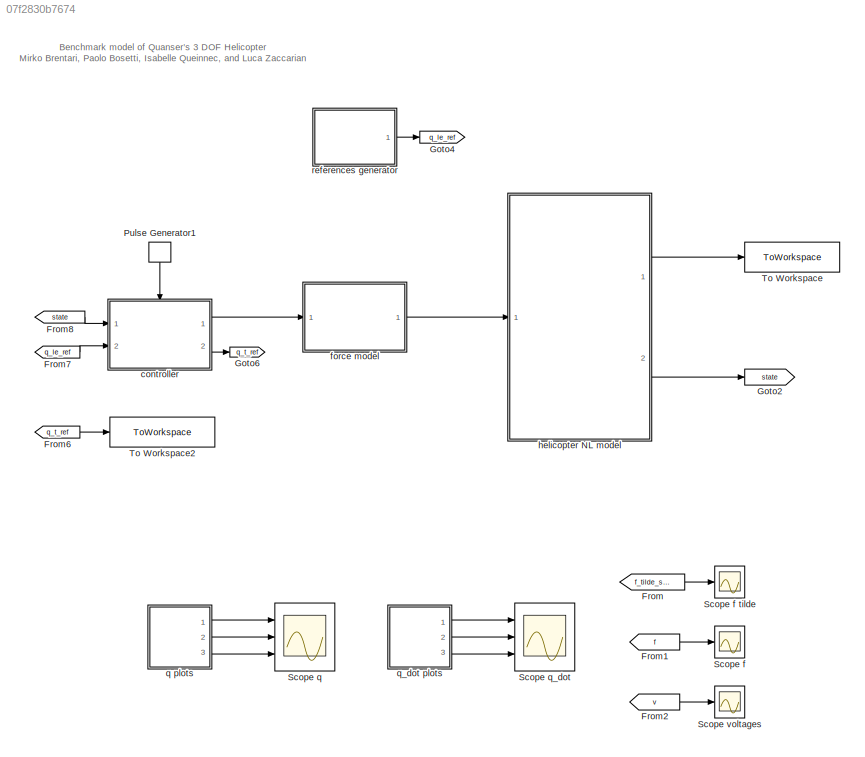
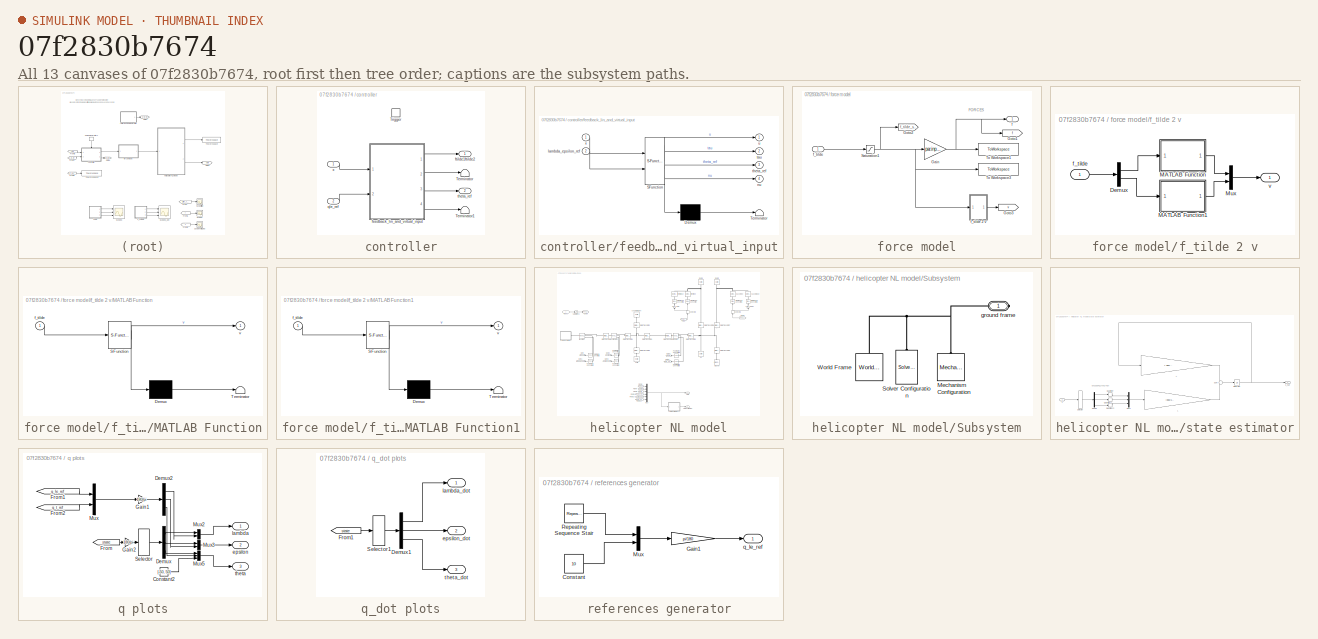
[diagram: thumbnail index - all 13 canvases of the model, root first then tree order]
MODEL slx_07f2830b7674
KIND model
CONFIG AbsTol = auto
CONFIG EnableMultiTasking = off
CONFIG FixedStep = par.ts
CONFIG MaxStep = 1e-3
CONFIG MinStep = auto
CONFIG RelTol = 1e-3
CONFIG SampleTimeConstraint = Unconstrained
CONFIG Solver = FixedStepAuto
CONFIG SolverName = FixedStepAuto
CONFIG StartTime = 0.0
CONFIG StopTime = par.tend
BLOCK [From] From
  GotoTag = f_tilde_sat
  TagVisibility = global
BLOCK [From] From1
  GotoTag = f
  TagVisibility = global
BLOCK [From] From2
  GotoTag = v
  TagVisibility = global
BLOCK [From] From6
  GotoTag = q_t_ref
  TagVisibility = global
BLOCK [From] From7
  GotoTag = q_le_ref
  TagVisibility = global
BLOCK [From] From8
  GotoTag = state
  TagVisibility = global
BLOCK [Goto] Goto2
  GotoTag = state
  TagVisibility = global
BLOCK [Goto] Goto4
  GotoTag = q_le_ref
  TagVisibility = global
BLOCK [Goto] Goto6
  GotoTag = q_t_ref
  TagVisibility = global
BLOCK [DiscretePulseGenerator] Pulse Generator1
  Period = 0.01
  Ports = [0, 1]
  PulseType = Time based
  PulseWidth = 50
BLOCK [Scope] Scope f
  NumInputPorts = 1
  Ports = [1]
  ScopeSpecificationString = Simulink.scopes.TimeScopeBlockCfg('CurrentConfiguration', extmgr.ConfigurationSet(extmgr.Configuration('Core','General UI',true),extmgr.Configuration('Core','Source UI',true),extmgr.Configuration('Sources','WiredSimulink',true,'DataLoggingVariableName','ScopeData1'),extmgr.Configuration('Visuals','Time Domain',true,'SerializedDisplays',{struct('MinYLimReal','-0.14251','MaxYLimReal','1.28256','YLab...<+1474ch>
BLOCK [Scope] Scope f tilde
  NumInputPorts = 1
  Ports = [1]
  ScopeSpecificationString = Simulink.scopes.TimeScopeBlockCfg('CurrentConfiguration', extmgr.ConfigurationSet(extmgr.Configuration('Core','General UI',true),extmgr.Configuration('Core','Source UI',true),extmgr.Configuration('Sources','WiredSimulink',true,'DataLoggingVariableName','ScopeData2'),extmgr.Configuration('Visuals','Time Domain',true,'SerializedDisplays',{struct('MinYLimReal','-0.38375','MaxYLimReal','1.15375','YLab...<+1459ch>
BLOCK [Scope] Scope q
  NumInputPorts = 3
  Ports = [3]
  ScopeSpecificationString = Simulink.scopes.TimeScopeBlockCfg('CurrentConfiguration', extmgr.ConfigurationSet(extmgr.Configuration('Core','General UI',true),extmgr.Configuration('Core','Source UI',true),extmgr.Configuration('Sources','WiredSimulink',true,'DataLoggingVariableName','ScopeData1'),extmgr.Configuration('Visuals','Time Domain',true,'SerializedDisplays',{struct('MinYLimReal','-112.97207','MaxYLimReal','116.74866','...<+2872ch>
BLOCK [Scope] Scope q_dot
  NumInputPorts = 3
  Ports = [3]
  ScopeSpecificationString = Simulink.scopes.TimeScopeBlockCfg('CurrentConfiguration', extmgr.ConfigurationSet(extmgr.Configuration('Core','General UI',true),extmgr.Configuration('Core','Source UI',true),extmgr.Configuration('Sources','WiredSimulink',true,'DataLoggingVariableName','ScopeData2'),extmgr.Configuration('Visuals','Time Domain',true,'SerializedDisplays',{struct('MinYLimReal','-0.10874','MaxYLimReal','0.8453','YLabe...<+2734ch>
BLOCK [Scope] Scope voltages
  NumInputPorts = 1
  Ports = [1]
  ScopeSpecificationString = Simulink.scopes.TimeScopeBlockCfg('CurrentConfiguration', extmgr.ConfigurationSet(extmgr.Configuration('Core','General UI',true),extmgr.Configuration('Core','Source UI',true),extmgr.Configuration('Sources','WiredSimulink',true,'DataLoggingVariableName','ScopeData3'),extmgr.Configuration('Visuals','Time Domain',true,'SerializedDisplays',{struct('MinYLimReal','-0.56285','MaxYLimReal','5.06568','YLab...<+1460ch>
BLOCK [ToWorkspace] To Workspace
  FixptAsFi = on
  MaxDataPoints = inf
  Ports = [1]
  SampleTime = -1
  Save2DSignal = 3-D array (concatenate along third dimension)
  SaveFormat = Timeseries
  VariableName = nlsimulator_output
BLOCK [ToWorkspace] To Workspace2
  FixptAsFi = on
  MaxDataPoints = inf
  Ports = [1]
  SampleTime = -1
  Save2DSignal = 3-D array (concatenate along third dimension)
  SaveFormat = Timeseries
  VariableName = nlsimulator_theta_ref
BLOCK [SubSystem] controller
  Ports = [2, 2, 0, 1]
  RequestExecContextInheritance = off
  Variant = off
BLOCK [Terminator] controller/Terminator
BLOCK [Terminator] controller/Terminator1
BLOCK [TriggerPort] controller/Trigger
  PortDimensions = 1
  Ports = []
  StatesWhenEnabling = held
  VariantControl = Variant
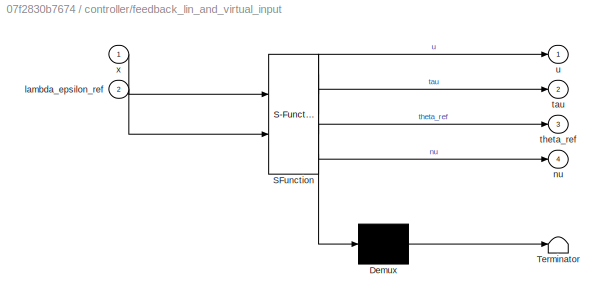
BLOCK [SubSystem] controller/feedback_lin_and_virtual_input
  ErrorFcn = Stateflow.Translate.translate
  PermitHierarchicalResolution = ExplicitOnly
  Ports = [2, 4]
  RequestExecContextInheritance = off
  SFBlockType = MATLAB Function
  TreatAsAtomicUnit = on
  Variant = off
BLOCK [Demux] controller/feedback_lin_and_virtual_input/ Demux 
  Outputs = 1
  Ports = [1, 1]
BLOCK [S-Function] controller/feedback_lin_and_virtual_input/ SFunction 
  EnableBusSupport = on
  FunctionName = sf_sfun
  Parameters = par
  PortCounts = [2 5]
  Ports = [2, 5]
  SFcnIsStateOwnerBlock = off
  SFunctionDeploymentMode = off
  Tag = Stateflow S-Function helico_model 5
BLOCK [Terminator] controller/feedback_lin_and_virtual_input/ Terminator 
BLOCK [Inport] controller/feedback_lin_and_virtual_input/lambda_epsilon_ref
  IconDisplay = Port number
  Port = 2
BLOCK [Outport] controller/feedback_lin_and_virtual_input/nu
  IconDisplay = Port number
  Port = 4
BLOCK [Outport] controller/feedback_lin_and_virtual_input/tau
  IconDisplay = Port number
  Port = 2
BLOCK [Outport] controller/feedback_lin_and_virtual_input/theta_ref
  IconDisplay = Port number
  Port = 3
BLOCK [Outport] controller/feedback_lin_and_virtual_input/u
  IconDisplay = Port number
BLOCK [Inport] controller/feedback_lin_and_virtual_input/x
  IconDisplay = Port number
BLOCK [Outport] controller/ftilde1ftilde2
  IconDisplay = Port number
BLOCK [Inport] controller/qle_ref
  IconDisplay = Port number
  Port = 2
BLOCK [Outport] controller/theta_ref
  IconDisplay = Port number
  Port = 2
BLOCK [Inport] controller/x
  IconDisplay = Port number
BLOCK [SubSystem] force model
  Ports = [1, 1]
  RequestExecContextInheritance = off
  Variant = off
BLOCK [Gain] force model/Gain
  Gain = par.input
  OutDataTypeStr = Inherit: Inherit via internal rule
  ParamDataTypeStr = Inherit: Inherit via internal rule
  SaturateOnIntegerOverflow = off
BLOCK [Goto] force model/Goto1
  GotoTag = f
  TagVisibility = global
BLOCK [Goto] force model/Goto2
  GotoTag = f_tilde_sat
  TagVisibility = global
BLOCK [Goto] force model/Goto3
  GotoTag = v
  TagVisibility = global
BLOCK [Saturate] force model/Saturation1
  InputPortMap = u0
  LowerLimit = -0.23
  Ports = [1, 1]
  UpperLimit = 1
BLOCK [ToWorkspace] force model/To Workspace1
  MaxDataPoints = inf
  Ports = [1]
  SampleTime = par.ts
  Save2DSignal = 3-D array (concatenate along third dimension)
  SaveFormat = Timeseries
  VariableName = nlsimulator_input
BLOCK [ToWorkspace] force model/To Workspace3
  MaxDataPoints = inf
  Ports = [1]
  SampleTime = par.ts
  Save2DSignal = 3-D array (concatenate along third dimension)
  SaveFormat = Timeseries
  VariableName = nlsimulator_ftilde
BLOCK [Outport] force model/f
  IconDisplay = Port number
BLOCK [Inport] force model/f_tilde
  IconDisplay = Port number
BLOCK [SubSystem] force model/f_tilde 2 v
  Ports = [1, 1]
  RequestExecContextInheritance = off
  Variant = off
BLOCK [Demux] force model/f_tilde 2 v/Demux
  DisplayOption = bar
  Outputs = 2
  Ports = [1, 2]
BLOCK [SubSystem] force model/f_tilde 2 v/MATLAB Function
  ErrorFcn = Stateflow.Translate.translate
  PermitHierarchicalResolution = ExplicitOnly
  Ports = [1, 1]
  RequestExecContextInheritance = off
  SFBlockType = MATLAB Function
  TreatAsAtomicUnit = on
  Variant = off
BLOCK [Demux] force model/f_tilde 2 v/MATLAB Function/ Demux 
  Outputs = 1
  Ports = [1, 1]
BLOCK [S-Function] force model/f_tilde 2 v/MATLAB Function/ SFunction 
  EnableBusSupport = on
  FunctionName = sf_sfun
  Parameters = par
  PortCounts = [1 2]
  Ports = [1, 2]
  SFcnIsStateOwnerBlock = off
  SFunctionDeploymentMode = off
  Tag = Stateflow S-Function helico_model 1
BLOCK [Terminator] force model/f_tilde 2 v/MATLAB Function/ Terminator 
BLOCK [Inport] force model/f_tilde 2 v/MATLAB Function/f_tilde
  IconDisplay = Port number
BLOCK [Outport] force model/f_tilde 2 v/MATLAB Function/v
  IconDisplay = Port number
BLOCK [SubSystem] force model/f_tilde 2 v/MATLAB Function1
  ErrorFcn = Stateflow.Translate.translate
  PermitHierarchicalResolution = ExplicitOnly
  Ports = [1, 1]
  RequestExecContextInheritance = off
  SFBlockType = MATLAB Function
  TreatAsAtomicUnit = on
  Variant = off
BLOCK [Demux] force model/f_tilde 2 v/MATLAB Function1/ Demux 
  Outputs = 1
  Ports = [1, 1]
BLOCK [S-Function] force model/f_tilde 2 v/MATLAB Function1/ SFunction 
  EnableBusSupport = on
  FunctionName = sf_sfun
  Parameters = par
  PortCounts = [1 2]
  Ports = [1, 2]
  SFcnIsStateOwnerBlock = off
  SFunctionDeploymentMode = off
  Tag = Stateflow S-Function helico_model 3
BLOCK [Terminator] force model/f_tilde 2 v/MATLAB Function1/ Terminator 
BLOCK [Inport] force model/f_tilde 2 v/MATLAB Function1/f_tilde
  IconDisplay = Port number
BLOCK [Outport] force model/f_tilde 2 v/MATLAB Function1/v
  IconDisplay = Port number
BLOCK [Mux] force model/f_tilde 2 v/Mux
  DisplayOption = bar
  Inputs = 2
  Ports = [2, 1]
BLOCK [Inport] force model/f_tilde 2 v/f_tilde
  IconDisplay = Port number
BLOCK [Outport] force model/f_tilde 2 v/v
  IconDisplay = Port number
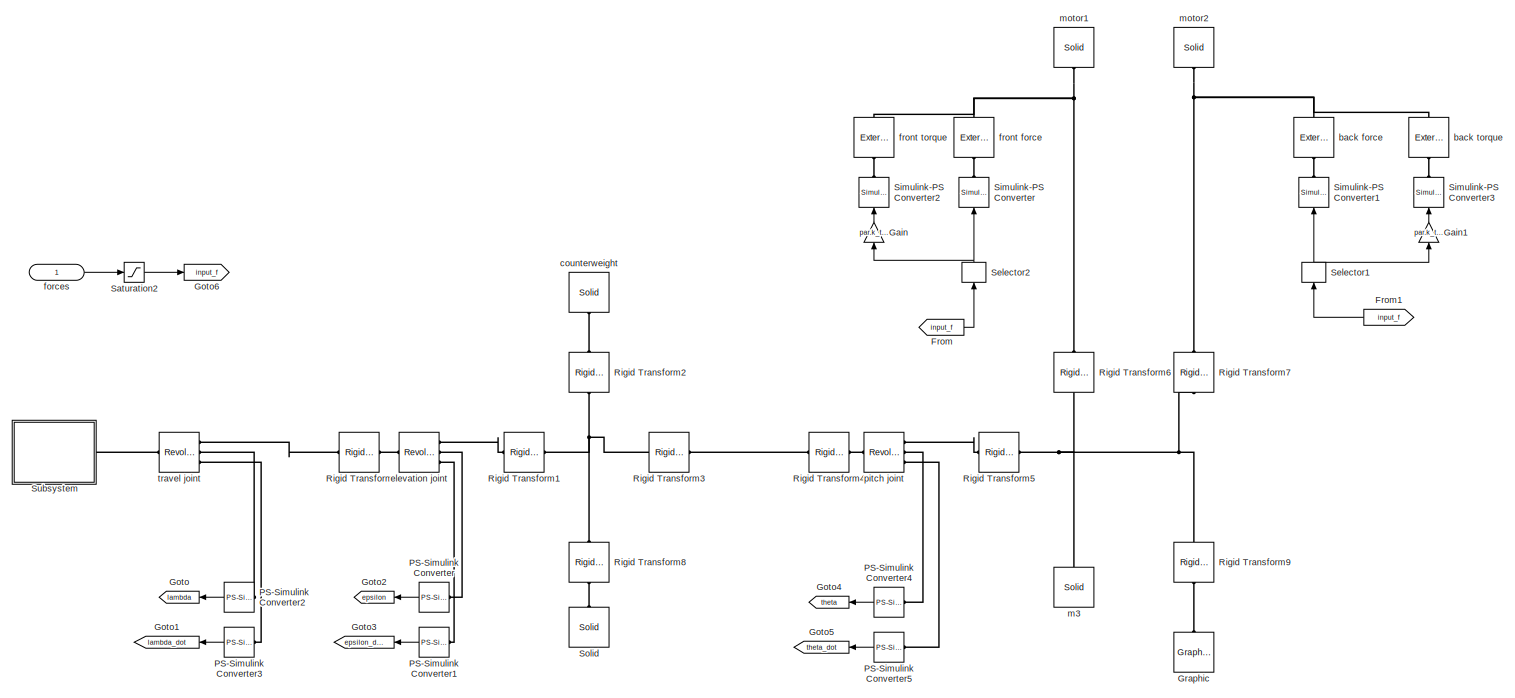
[diagram: helicopter NL model - part 1/2, full width, middle band]
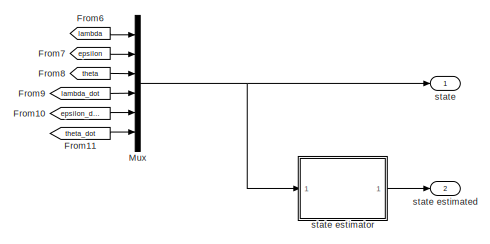
[diagram: helicopter NL model - part 2/2, bottom center region]
BLOCK [SubSystem] helicopter NL model
  Ports = [1, 2]
  RequestExecContextInheritance = off
  Variant = off
BLOCK [From] helicopter NL model/From
  GotoTag = input_f
BLOCK [From] helicopter NL model/From1
  GotoTag = input_f
BLOCK [From] helicopter NL model/From10
  GotoTag = epsilon_dot
BLOCK [From] helicopter NL model/From11
  GotoTag = theta_dot
BLOCK [From] helicopter NL model/From6
  GotoTag = lambda
BLOCK [From] helicopter NL model/From7
  GotoTag = epsilon
BLOCK [From] helicopter NL model/From8
  GotoTag = theta
BLOCK [From] helicopter NL model/From9
  GotoTag = lambda_dot
BLOCK [Gain] helicopter NL model/Gain
  Gain = par.k_taudrag_f
  OutDataTypeStr = Inherit: Inherit via internal rule
  ParamDataTypeStr = Inherit: Inherit via internal rule
  SaturateOnIntegerOverflow = off
BLOCK [Gain] helicopter NL model/Gain1
  Gain = par.k_taudrag_f
  OutDataTypeStr = Inherit: Inherit via internal rule
  ParamDataTypeStr = Inherit: Inherit via internal rule
  SaturateOnIntegerOverflow = off
BLOCK [Goto] helicopter NL model/Goto
  GotoTag = lambda
BLOCK [Goto] helicopter NL model/Goto1
  GotoTag = lambda_dot
BLOCK [Goto] helicopter NL model/Goto2
  GotoTag = epsilon
BLOCK [Goto] helicopter NL model/Goto3
  GotoTag = epsilon_dot
BLOCK [Goto] helicopter NL model/Goto4
  GotoTag = theta
BLOCK [Goto] helicopter NL model/Goto5
  GotoTag = theta_dot
BLOCK [Goto] helicopter NL model/Goto6
  GotoTag = input_f
BLOCK [Reference] helicopter NL model/Graphic  REF=sm_lib/Body Elements/Graphic
  Ports = [0, 0, 0, 0, 0, 0, 1]
  SourceBlock = sm_lib/Body Elements/Graphic
  SourceProductBaseCode = MS
  SourceProductName = Simscape Multibody
  SourceType = Graphic
BLOCK [Mux] helicopter NL model/Mux
  DisplayOption = bar
  Inputs = 6
  Ports = [6, 1]
BLOCK [Reference] helicopter NL model/PS-Simulink Converter  REF=nesl_utility/PS-Simulink
Converter
  Ports = [0, 1, 0, 0, 0, 1]
  SourceBlock = nesl_utility/PS-Simulink\nConverter
  SourceProductBaseCode = SS
  SourceProductName = Simscape
  SourceType = PS-Simulink\nConverter
BLOCK [Reference] helicopter NL model/PS-Simulink Converter1  REF=nesl_utility/PS-Simulink
Converter
  Ports = [0, 1, 0, 0, 0, 1]
  SourceBlock = nesl_utility/PS-Simulink\nConverter
  SourceProductBaseCode = SS
  SourceProductName = Simscape
  SourceType = PS-Simulink\nConverter
BLOCK [Reference] helicopter NL model/PS-Simulink Converter2  REF=nesl_utility/PS-Simulink
Converter
  Ports = [0, 1, 0, 0, 0, 1]
  SourceBlock = nesl_utility/PS-Simulink\nConverter
  SourceProductBaseCode = SS
  SourceProductName = Simscape
  SourceType = PS-Simulink\nConverter
BLOCK [Reference] helicopter NL model/PS-Simulink Converter3  REF=nesl_utility/PS-Simulink
Converter
  Ports = [0, 1, 0, 0, 0, 1]
  SourceBlock = nesl_utility/PS-Simulink\nConverter
  SourceProductBaseCode = SS
  SourceProductName = Simscape
  SourceType = PS-Simulink\nConverter
BLOCK [Reference] helicopter NL model/PS-Simulink Converter4  REF=nesl_utility/PS-Simulink
Converter
  Ports = [0, 1, 0, 0, 0, 1]
  SourceBlock = nesl_utility/PS-Simulink\nConverter
  SourceProductBaseCode = SS
  SourceProductName = Simscape
  SourceType = PS-Simulink\nConverter
BLOCK [Reference] helicopter NL model/PS-Simulink Converter5  REF=nesl_utility/PS-Simulink
Converter
  Ports = [0, 1, 0, 0, 0, 1]
  SourceBlock = nesl_utility/PS-Simulink\nConverter
  SourceProductBaseCode = SS
  SourceProductName = Simscape
  SourceType = PS-Simulink\nConverter
BLOCK [Reference] helicopter NL model/Rigid Transform  REF=sm_lib/Frames and
Transforms/Rigid
Transform
  Ports = [0, 0, 0, 0, 0, 1, 1]
  SourceBlock = sm_lib/Frames and\nTransforms/Rigid\nTransform
  SourceProductBaseCode = MS
  SourceProductName = Simscape Multibody
  SourceType = Rigid\nTransform
BLOCK [Reference] helicopter NL model/Rigid Transform1  REF=sm_lib/Frames and
Transforms/Rigid
Transform
  Ports = [0, 0, 0, 0, 0, 1, 1]
  SourceBlock = sm_lib/Frames and\nTransforms/Rigid\nTransform
  SourceProductBaseCode = MS
  SourceProductName = Simscape Multibody
  SourceType = Rigid\nTransform
BLOCK [Reference] helicopter NL model/Rigid Transform2  REF=sm_lib/Frames and
Transforms/Rigid
Transform
  Ports = [0, 0, 0, 0, 0, 1, 1]
  SourceBlock = sm_lib/Frames and\nTransforms/Rigid\nTransform
  SourceProductBaseCode = MS
  SourceProductName = Simscape Multibody
  SourceType = Rigid\nTransform
BLOCK [Reference] helicopter NL model/Rigid Transform3  REF=sm_lib/Frames and
Transforms/Rigid
Transform
  Ports = [0, 0, 0, 0, 0, 1, 1]
  SourceBlock = sm_lib/Frames and\nTransforms/Rigid\nTransform
  SourceProductBaseCode = MS
  SourceProductName = Simscape Multibody
  SourceType = Rigid\nTransform
BLOCK [Reference] helicopter NL model/Rigid Transform4  REF=sm_lib/Frames and
Transforms/Rigid
Transform
  Ports = [0, 0, 0, 0, 0, 1, 1]
  SourceBlock = sm_lib/Frames and\nTransforms/Rigid\nTransform
  SourceProductBaseCode = MS
  SourceProductName = Simscape Multibody
  SourceType = Rigid\nTransform
BLOCK [Reference] helicopter NL model/Rigid Transform5  REF=sm_lib/Frames and
Transforms/Rigid
Transform
  Ports = [0, 0, 0, 0, 0, 1, 1]
  SourceBlock = sm_lib/Frames and\nTransforms/Rigid\nTransform
  SourceProductBaseCode = MS
  SourceProductName = Simscape Multibody
  SourceType = Rigid\nTransform
BLOCK [Reference] helicopter NL model/Rigid Transform6  REF=sm_lib/Frames and
Transforms/Rigid
Transform
  Ports = [0, 0, 0, 0, 0, 1, 1]
  SourceBlock = sm_lib/Frames and\nTransforms/Rigid\nTransform
  SourceProductBaseCode = MS
  SourceProductName = Simscape Multibody
  SourceType = Rigid\nTransform
BLOCK [Reference] helicopter NL model/Rigid Transform7  REF=sm_lib/Frames and
Transforms/Rigid
Transform
  Ports = [0, 0, 0, 0, 0, 1, 1]
  SourceBlock = sm_lib/Frames and\nTransforms/Rigid\nTransform
  SourceProductBaseCode = MS
  SourceProductName = Simscape Multibody
  SourceType = Rigid\nTransform
BLOCK [Reference] helicopter NL model/Rigid Transform8  REF=sm_lib/Frames and
Transforms/Rigid
Transform
  Ports = [0, 0, 0, 0, 0, 1, 1]
  SourceBlock = sm_lib/Frames and\nTransforms/Rigid\nTransform
  SourceProductBaseCode = MS
  SourceProductName = Simscape Multibody
  SourceType = Rigid\nTransform
BLOCK [Reference] helicopter NL model/Rigid Transform9  REF=sm_lib/Frames and
Transforms/Rigid
Transform
  Ports = [0, 0, 0, 0, 0, 1, 1]
  SourceBlock = sm_lib/Frames and\nTransforms/Rigid\nTransform
  SourceProductBaseCode = MS
  SourceProductName = Simscape Multibody
  SourceType = Rigid\nTransform
BLOCK [Saturate] helicopter NL model/Saturation2
  InputPortMap = u0
  LowerLimit = -0.23*par.input
  Ports = [1, 1]
  UpperLimit = 1*par.input
BLOCK [Selector] helicopter NL model/Selector1
  IndexOptions = Index vector (dialog)
  Indices = 2
  InputPortWidth = 2
  OutputSizes = 1
  Ports = [1, 1]
BLOCK [Selector] helicopter NL model/Selector2
  IndexOptions = Index vector (dialog)
  Indices = 1
  InputPortWidth = 2
  OutputSizes = 1
  Ports = [1, 1]
BLOCK [Reference] helicopter NL model/Simulink-PS Converter  REF=nesl_utility/Simulink-PS
Converter
  Ports = [1, 0, 0, 0, 0, 0, 1]
  SourceBlock = nesl_utility/Simulink-PS\nConverter
  SourceProductBaseCode = SS
  SourceProductName = Simscape
  SourceType = Simulink-PS\nConverter
BLOCK [Reference] helicopter NL model/Simulink-PS Converter1  REF=nesl_utility/Simulink-PS
Converter
  Ports = [1, 0, 0, 0, 0, 0, 1]
  SourceBlock = nesl_utility/Simulink-PS\nConverter
  SourceProductBaseCode = SS
  SourceProductName = Simscape
  SourceType = Simulink-PS\nConverter
BLOCK [Reference] helicopter NL model/Simulink-PS Converter2  REF=nesl_utility/Simulink-PS
Converter
  Ports = [1, 0, 0, 0, 0, 0, 1]
  SourceBlock = nesl_utility/Simulink-PS\nConverter
  SourceProductBaseCode = SS
  SourceProductName = Simscape
  SourceType = Simulink-PS\nConverter
BLOCK [Reference] helicopter NL model/Simulink-PS Converter3  REF=nesl_utility/Simulink-PS
Converter
  Ports = [1, 0, 0, 0, 0, 0, 1]
  SourceBlock = nesl_utility/Simulink-PS\nConverter
  SourceProductBaseCode = SS
  SourceProductName = Simscape
  SourceType = Simulink-PS\nConverter
BLOCK [Reference] helicopter NL model/Solid  REF=sm_lib/Body Elements/Solid
  Ports = [0, 0, 0, 0, 0, 0, 1]
  SourceBlock = sm_lib/Body Elements/Solid
  SourceProductBaseCode = MS
  SourceProductName = Simscape Multibody
  SourceType = Solid
BLOCK [SubSystem] helicopter NL model/Subsystem
  Ports = [0, 0, 0, 0, 0, 0, 1]
  RequestExecContextInheritance = off
  Variant = off
BLOCK [Reference] helicopter NL model/Subsystem/Mechanism Configuration  REF=sm_lib/Utilities/Mechanism
Configuration
  Ports = [0, 0, 0, 0, 0, 0, 1]
  SourceBlock = sm_lib/Utilities/Mechanism\nConfiguration
  SourceProductBaseCode = MS
  SourceProductName = Simscape Multibody
  SourceType = Mechanism\nConfiguration
BLOCK [Reference] helicopter NL model/Subsystem/Solver Configuration  REF=nesl_utility/Solver
Configuration
  Ports = [0, 0, 0, 0, 0, 0, 1]
  SourceBlock = nesl_utility/Solver\nConfiguration
  SourceProductBaseCode = SS
  SourceProductName = Simscape
  SourceType = Solver\nConfiguration
BLOCK [Reference] helicopter NL model/Subsystem/World Frame  REF=sm_lib/Frames and
Transforms/World Frame
  Ports = [0, 0, 0, 0, 0, 0, 1]
  SourceBlock = sm_lib/Frames and\nTransforms/World Frame
  SourceProductBaseCode = MS
  SourceProductName = Simscape Multibody
  SourceType = World Frame
BLOCK [PMIOPort] helicopter NL model/Subsystem/ground frame
  Port = 1
  Side = Right
BLOCK [Reference] helicopter NL model/back force  REF=sm_lib/Forces and
Torques/External Force
and Torque
  Ports = [0, 0, 0, 0, 0, 1, 1]
  SourceBlock = sm_lib/Forces and\nTorques/External Force\nand Torque
  SourceProductBaseCode = MS
  SourceProductName = Simscape Multibody
  SourceType = External Force\nand Torque
BLOCK [Reference] helicopter NL model/back torque  REF=sm_lib/Forces and
Torques/External Force
and Torque
  Ports = [0, 0, 0, 0, 0, 1, 1]
  SourceBlock = sm_lib/Forces and\nTorques/External Force\nand Torque
  SourceProductBaseCode = MS
  SourceProductName = Simscape Multibody
  SourceType = External Force\nand Torque
BLOCK [Reference] helicopter NL model/counterweight  REF=sm_lib/Body Elements/Solid
  Ports = [0, 0, 0, 0, 0, 0, 1]
  SourceBlock = sm_lib/Body Elements/Solid
  SourceProductBaseCode = MS
  SourceProductName = Simscape Multibody
  SourceType = Solid
BLOCK [Reference] helicopter NL model/elevation joint  REF=sm_lib/Joints/Revolute Joint
  Ports = [0, 0, 0, 0, 0, 1, 3]
  SourceBlock = sm_lib/Joints/Revolute Joint
  SourceProductBaseCode = MS
  SourceProductName = Simscape Multibody
  SourceType = Revolute Joint
BLOCK [Inport] helicopter NL model/forces
  IconDisplay = Port number
BLOCK [Reference] helicopter NL model/front force  REF=sm_lib/Forces and
Torques/External Force
and Torque
  Ports = [0, 0, 0, 0, 0, 1, 1]
  SourceBlock = sm_lib/Forces and\nTorques/External Force\nand Torque
  SourceProductBaseCode = MS
  SourceProductName = Simscape Multibody
  SourceType = External Force\nand Torque
BLOCK [Reference] helicopter NL model/front torque  REF=sm_lib/Forces and
Torques/External Force
and Torque
  Ports = [0, 0, 0, 0, 0, 1, 1]
  SourceBlock = sm_lib/Forces and\nTorques/External Force\nand Torque
  SourceProductBaseCode = MS
  SourceProductName = Simscape Multibody
  SourceType = External Force\nand Torque
BLOCK [Reference] helicopter NL model/m3  REF=sm_lib/Body Elements/Solid
  Ports = [0, 0, 0, 0, 0, 0, 1]
  SourceBlock = sm_lib/Body Elements/Solid
  SourceProductBaseCode = MS
  SourceProductName = Simscape Multibody
  SourceType = Solid
BLOCK [Reference] helicopter NL model/motor1  REF=sm_lib/Body Elements/Solid
  Ports = [0, 0, 0, 0, 0, 0, 1]
  SourceBlock = sm_lib/Body Elements/Solid
  SourceProductBaseCode = MS
  SourceProductName = Simscape Multibody
  SourceType = Solid
BLOCK [Reference] helicopter NL model/motor2  REF=sm_lib/Body Elements/Solid
  Ports = [0, 0, 0, 0, 0, 0, 1]
  SourceBlock = sm_lib/Body Elements/Solid
  SourceProductBaseCode = MS
  SourceProductName = Simscape Multibody
  SourceType = Solid
BLOCK [Reference] helicopter NL model/pitch joint  REF=sm_lib/Joints/Revolute Joint
  Ports = [0, 0, 0, 0, 0, 1, 3]
  SourceBlock = sm_lib/Joints/Revolute Joint
  SourceProductBaseCode = MS
  SourceProductName = Simscape Multibody
  SourceType = Revolute Joint
BLOCK [Outport] helicopter NL model/state
  IconDisplay = Port number
BLOCK [Outport] helicopter NL model/state estimated
  IconDisplay = Port number
  Port = 2
BLOCK [SubSystem] helicopter NL model/state estimator
  Ports = [1, 1]
  RequestExecContextInheritance = off
  Variant = off
BLOCK [Gain] helicopter NL model/state estimator/A
  Gain = [-diag(5./par.est.high_gain_scaling) eye(3); -diag(6./par.est.high_gain_scaling.^2) zeros(3)]
  Multiplication = Matrix(K*u)
  OutDataTypeStr = Inherit: Inherit via internal rule
  ParamDataTypeStr = Inherit: Inherit via internal rule
  SaturateOnIntegerOverflow = off
BLOCK [Demux] helicopter NL model/state estimator/Demux
  DisplayOption = bar
  Outputs = 3
  Ports = [1, 3]
BLOCK [Integrator] helicopter NL model/state estimator/Integrator
  InitialCondition = [par.lambda_0; par.epsilon_0; par.theta_0; 0; 0; 0]
  Ports = [1, 1]
BLOCK [Gain] helicopter NL model/state estimator/L
  Gain = [diag(5./par.est.high_gain_scaling); diag(6./par.est.high_gain_scaling.^2)]
  Multiplication = Matrix(K*u)
  OutDataTypeStr = Inherit: Inherit via internal rule
  ParamDataTypeStr = Inherit: Inherit via internal rule
  SaturateOnIntegerOverflow = off
BLOCK [Mux] helicopter NL model/state estimator/Mux1
  DisplayOption = bar
  Inputs = 3
  Ports = [3, 1]
BLOCK [Quantizer] helicopter NL model/state estimator/Quantizer
  QuantizationInterval = 0.0015
BLOCK [Quantizer] helicopter NL model/state estimator/Quantizer1
  QuantizationInterval = 0.0015
BLOCK [Quantizer] helicopter NL model/state estimator/Quantizer2
  QuantizationInterval = 0.0015
BLOCK [Selector] helicopter NL model/state estimator/Selector
  IndexOptions = Index vector (dialog)
  Indices = 1:3
  InputPortWidth = 6
  OutputSizes = 1
  Ports = [1, 1]
BLOCK [Sum] helicopter NL model/state estimator/Sum
  IconShape = round
  InputSameDT = off
  OutDataTypeStr = Inherit: Inherit via internal rule
  Ports = [2, 1]
  SaturateOnIntegerOverflow = off
BLOCK [Inport] helicopter NL model/state estimator/x
  IconDisplay = Port number
BLOCK [Outport] helicopter NL model/state estimator/x_hat
  IconDisplay = Port number
BLOCK [Reference] helicopter NL model/travel joint  REF=sm_lib/Joints/Revolute Joint
  Ports = [0, 0, 0, 0, 0, 1, 3]
  SourceBlock = sm_lib/Joints/Revolute Joint
  SourceProductBaseCode = MS
  SourceProductName = Simscape Multibody
  SourceType = Revolute Joint
BLOCK [SubSystem] q plots
  Ports = [0, 3]
  RequestExecContextInheritance = off
  Variant = off
BLOCK [Constant] q plots/Constant2
  Value = [-50, 50]
BLOCK [Demux] q plots/Demux
  DisplayOption = bar
  Outputs = 3
  Ports = [1, 3]
BLOCK [Demux] q plots/Demux2
  DisplayOption = bar
  Outputs = 3
  Ports = [1, 3]
BLOCK [From] q plots/From
  GotoTag = state
  TagVisibility = global
BLOCK [From] q plots/From1
  GotoTag = q_le_ref
  TagVisibility = global
BLOCK [From] q plots/From2
  GotoTag = q_t_ref
  TagVisibility = global
BLOCK [Gain] q plots/Gain1
  Gain = 180/pi
  OutDataTypeStr = Inherit: Inherit via internal rule
  ParamDataTypeStr = Inherit: Inherit via internal rule
  SaturateOnIntegerOverflow = off
BLOCK [Gain] q plots/Gain2
  Gain = 180/pi
  OutDataTypeStr = Inherit: Inherit via internal rule
  ParamDataTypeStr = Inherit: Inherit via internal rule
  SaturateOnIntegerOverflow = off
BLOCK [Mux] q plots/Mux
  DisplayOption = bar
  Inputs = 2
  Ports = [2, 1]
BLOCK [Mux] q plots/Mux2
  DisplayOption = bar
  Inputs = 2
  Ports = [2, 1]
BLOCK [Mux] q plots/Mux3
  DisplayOption = bar
  Inputs = 2
  Ports = [2, 1]
BLOCK [Mux] q plots/Mux5
  DisplayOption = bar
  Inputs = 3
  Ports = [3, 1]
BLOCK [Selector] q plots/Selector
  IndexOptions = Index vector (dialog)
  Indices = 1:3
  InputPortWidth = 6
  OutputSizes = 1
  Ports = [1, 1]
BLOCK [Outport] q plots/epsilon
  IconDisplay = Port number
  Port = 2
BLOCK [Outport] q plots/lambda
  IconDisplay = Port number
BLOCK [Outport] q plots/theta
  IconDisplay = Port number
  Port = 3
BLOCK [SubSystem] q_dot plots
  Ports = [0, 3]
  RequestExecContextInheritance = off
  Variant = off
BLOCK [Demux] q_dot plots/Demux1
  DisplayOption = bar
  Outputs = 3
  Ports = [1, 3]
BLOCK [From] q_dot plots/From1
  GotoTag = state
  TagVisibility = global
BLOCK [Selector] q_dot plots/Selector1
  IndexOptions = Index vector (dialog)
  Indices = 4:6
  InputPortWidth = 6
  OutputSizes = 1
  Ports = [1, 1]
BLOCK [Outport] q_dot plots/epsilon_dot
  IconDisplay = Port number
  Port = 2
BLOCK [Outport] q_dot plots/lambda_dot
  IconDisplay = Port number
BLOCK [Outport] q_dot plots/theta_dot
  IconDisplay = Port number
  Port = 3
BLOCK [SubSystem] references generator
  Ports = [0, 1]
  RequestExecContextInheritance = off
  Variant = off
BLOCK [Constant] references generator/Constant
  Value = 10
BLOCK [Gain] references generator/Gain1
  Gain = pi/180
  OutDataTypeStr = Inherit: Inherit via internal rule
  ParamDataTypeStr = Inherit: Inherit via internal rule
  SaturateOnIntegerOverflow = off
BLOCK [Mux] references generator/Mux
  DisplayOption = bar
  Inputs = 2
  Ports = [2, 1]
BLOCK [Reference] references generator/Repeating Sequence Stair  REF=simulink/Sources/Repeating
Sequence
Stair
  Ports = [0, 1]
  SourceBlock = simulink/Sources/Repeating\nSequence\nStair
  SourceProductBaseCode = SL
  SourceProductName = Simulink
  SourceType = Repeating Sequence Stair
BLOCK [Outport] references generator/q_le_ref
  IconDisplay = Port number
ANNOTATION (root): Benchmark model of Quanser’s 3 DOF Helicopter Mirko Brentari, Paolo Bosetti, Isabelle Queinnec, and Luca Zaccarian
ANNOTATION force model: FORCES
ANNOTATION helicopter NL model/state estimator: ENCODER QUANTIZATION
LINE From1:1 -> Scope f:1
LINE From2:1 -> Scope voltages:1
LINE From6:1 -> To Workspace2:1
LINE From7:1 -> controller:2
LINE From8:1 -> controller:1
LINE From:1 -> Scope f tilde:1
LINE Pulse Generator1:1 -> controller:trigger
LINE controller/feedback_lin_and_virtual_input:1 -> controller/ftilde1ftilde2:1
LINE controller/feedback_lin_and_virtual_input:2 -> controller/Terminator:1
LINE controller/feedback_lin_and_virtual_input:3 -> controller/theta_ref:1
LINE controller/feedback_lin_and_virtual_input:4 -> controller/Terminator1:1
LINE controller/qle_ref:1 -> controller/feedback_lin_and_virtual_input:2
LINE controller/x:1 -> controller/feedback_lin_and_virtual_input:1
LINE controller:1 -> force model:1
LINE controller:2 -> Goto6:1
NET force model/Gain:1 -> force model/Goto1:1, force model/To Workspace1:1, force model/f:1
NET force model/Saturation1:1 -> force model/Gain:1, force model/Goto2:1, force model/To Workspace3:1, force model/f_tilde 2 v:1
LINE force model/f_tilde 2 v/Demux:1 -> force model/f_tilde 2 v/MATLAB Function:1
LINE force model/f_tilde 2 v/Demux:2 -> force model/f_tilde 2 v/MATLAB Function1:1
LINE force model/f_tilde 2 v/MATLAB Function1:1 -> force model/f_tilde 2 v/Mux:2
LINE force model/f_tilde 2 v/MATLAB Function:1 -> force model/f_tilde 2 v/Mux:1
LINE force model/f_tilde 2 v/Mux:1 -> force model/f_tilde 2 v/v:1
LINE force model/f_tilde 2 v/f_tilde:1 -> force model/f_tilde 2 v/Demux:1
LINE force model/f_tilde 2 v:1 -> force model/Goto3:1
LINE force model/f_tilde:1 -> force model/Saturation1:1
LINE force model:1 -> helicopter NL model:1
LINE helicopter NL model/From10:1 -> helicopter NL model/Mux:5
LINE helicopter NL model/From11:1 -> helicopter NL model/Mux:6
LINE helicopter NL model/From1:1 -> helicopter NL model/Selector1:1
LINE helicopter NL model/From6:1 -> helicopter NL model/Mux:1
LINE helicopter NL model/From7:1 -> helicopter NL model/Mux:2
LINE helicopter NL model/From8:1 -> helicopter NL model/Mux:3
LINE helicopter NL model/From9:1 -> helicopter NL model/Mux:4
LINE helicopter NL model/From:1 -> helicopter NL model/Selector2:1
LINE helicopter NL model/Gain1:1 -> helicopter NL model/Simulink-PS Converter3:1
LINE helicopter NL model/Gain:1 -> helicopter NL model/Simulink-PS Converter2:1
NET helicopter NL model/Mux:1 -> helicopter NL model/state estimator:1, helicopter NL model/state:1
LINE helicopter NL model/PS-Simulink Converter1:1 -> helicopter NL model/Goto3:1
LINE helicopter NL model/PS-Simulink Converter2:1 -> helicopter NL model/Goto:1
LINE helicopter NL model/PS-Simulink Converter3:1 -> helicopter NL model/Goto1:1
LINE helicopter NL model/PS-Simulink Converter4:1 -> helicopter NL model/Goto4:1
LINE helicopter NL model/PS-Simulink Converter5:1 -> helicopter NL model/Goto5:1
LINE helicopter NL model/PS-Simulink Converter:1 -> helicopter NL model/Goto2:1
LINE helicopter NL model/Saturation2:1 -> helicopter NL model/Goto6:1
NET helicopter NL model/Selector1:1 -> helicopter NL model/Gain1:1, helicopter NL model/Simulink-PS Converter1:1
NET helicopter NL model/Selector2:1 -> helicopter NL model/Gain:1, helicopter NL model/Simulink-PS Converter:1
LINE helicopter NL model/forces:1 -> helicopter NL model/Saturation2:1
LINE helicopter NL model/state estimator/A:1 -> helicopter NL model/state estimator/Sum:1
LINE helicopter NL model/state estimator/Demux:1 -> helicopter NL model/state estimator/Quantizer:1
LINE helicopter NL model/state estimator/Demux:2 -> helicopter NL model/state estimator/Quantizer1:1
LINE helicopter NL model/state estimator/Demux:3 -> helicopter NL model/state estimator/Quantizer2:1
NET helicopter NL model/state estimator/Integrator:1 -> helicopter NL model/state estimator/A:1, helicopter NL model/state estimator/x_hat:1
LINE helicopter NL model/state estimator/L:1 -> helicopter NL model/state estimator/Sum:2
LINE helicopter NL model/state estimator/Mux1:1 -> helicopter NL model/state estimator/L:1
LINE helicopter NL model/state estimator/Quantizer1:1 -> helicopter NL model/state estimator/Mux1:2
LINE helicopter NL model/state estimator/Quantizer2:1 -> helicopter NL model/state estimator/Mux1:3
LINE helicopter NL model/state estimator/Quantizer:1 -> helicopter NL model/state estimator/Mux1:1
LINE helicopter NL model/state estimator/Selector:1 -> helicopter NL model/state estimator/Demux:1
LINE helicopter NL model/state estimator/Sum:1 -> helicopter NL model/state estimator/Integrator:1
LINE helicopter NL model/state estimator/x:1 -> helicopter NL model/state estimator/Selector:1
LINE helicopter NL model/state estimator:1 -> helicopter NL model/state estimated:1
LINE helicopter NL model:1 -> To Workspace:1
LINE helicopter NL model:2 -> Goto2:1
LINE q plots/Constant2:1 -> q plots/Mux5:3
LINE q plots/Demux2:1 -> q plots/Mux2:2
LINE q plots/Demux2:2 -> q plots/Mux3:2
LINE q plots/Demux2:3 -> q plots/Mux5:2
LINE q plots/Demux:1 -> q plots/Mux2:1
LINE q plots/Demux:2 -> q plots/Mux3:1
LINE q plots/Demux:3 -> q plots/Mux5:1
LINE q plots/From1:1 -> q plots/Mux:1
LINE q plots/From2:1 -> q plots/Mux:2
LINE q plots/From:1 -> q plots/Gain2:1
LINE q plots/Gain1:1 -> q plots/Demux2:1
LINE q plots/Gain2:1 -> q plots/Selector:1
LINE q plots/Mux2:1 -> q plots/lambda:1
LINE q plots/Mux3:1 -> q plots/epsilon:1
LINE q plots/Mux5:1 -> q plots/theta:1
LINE q plots/Mux:1 -> q plots/Gain1:1
LINE q plots/Selector:1 -> q plots/Demux:1
LINE q plots:1 -> Scope q:1
LINE q plots:2 -> Scope q:2
LINE q plots:3 -> Scope q:3
LINE q_dot plots/Demux1:1 -> q_dot plots/lambda_dot:1
LINE q_dot plots/Demux1:2 -> q_dot plots/epsilon_dot:1
LINE q_dot plots/Demux1:3 -> q_dot plots/theta_dot:1
LINE q_dot plots/From1:1 -> q_dot plots/Selector1:1
LINE q_dot plots/Selector1:1 -> q_dot plots/Demux1:1
LINE q_dot plots:1 -> Scope q_dot:1
LINE q_dot plots:2 -> Scope q_dot:2
LINE q_dot plots:3 -> Scope q_dot:3
LINE references generator/Constant:1 -> references generator/Mux:2
LINE references generator/Gain1:1 -> references generator/q_le_ref:1
LINE references generator/Mux:1 -> references generator/Gain1:1
LINE references generator/Repeating Sequence Stair:1 -> references generator/Mux:1
LINE references generator:1 -> Goto4:1
PLINE helicopter NL model/Graphic:RConn1 -- helicopter NL model/Rigid Transform9:RConn1
PLINE helicopter NL model/PS-Simulink Converter1:LConn1 -- helicopter NL model/elevation joint:RConn3
PLINE helicopter NL model/PS-Simulink Converter2:LConn1 -- helicopter NL model/travel joint:RConn2
PLINE helicopter NL model/PS-Simulink Converter3:LConn1 -- helicopter NL model/travel joint:RConn3
PLINE helicopter NL model/PS-Simulink Converter4:LConn1 -- helicopter NL model/pitch joint:RConn2
PLINE helicopter NL model/PS-Simulink Converter5:LConn1 -- helicopter NL model/pitch joint:RConn3
PLINE helicopter NL model/PS-Simulink Converter:LConn1 -- helicopter NL model/elevation joint:RConn2
PLINE helicopter NL model/Rigid Transform1:LConn1 -- helicopter NL model/elevation joint:RConn1
PNET net1: helicopter NL model/Rigid Transform1:RConn1 -- helicopter NL model/Rigid Transform2:LConn1 -- helicopter NL model/Rigid Transform3:LConn1 -- helicopter NL model/Rigid Transform8:LConn1
PLINE helicopter NL model/Rigid Transform2:RConn1 -- helicopter NL model/counterweight:RConn1
PLINE helicopter NL model/Rigid Transform3:RConn1 -- helicopter NL model/Rigid Transform4:LConn1
PLINE helicopter NL model/Rigid Transform4:RConn1 -- helicopter NL model/pitch joint:LConn1
PLINE helicopter NL model/Rigid Transform5:LConn1 -- helicopter NL model/pitch joint:RConn1
PNET net2: helicopter NL model/Rigid Transform5:RConn1 -- helicopter NL model/Rigid Transform6:LConn1 -- helicopter NL model/Rigid Transform7:LConn1 -- helicopter NL model/Rigid Transform9:LConn1 -- helicopter NL model/m3:RConn1
PNET net3: helicopter NL model/Rigid Transform6:RConn1 -- helicopter NL model/front force:RConn1 -- helicopter NL model/front torque:RConn1 -- helicopter NL model/motor1:RConn1
PNET net4: helicopter NL model/Rigid Transform7:RConn1 -- helicopter NL model/back force:RConn1 -- helicopter NL model/back torque:RConn1 -- helicopter NL model/motor2:RConn1
PLINE helicopter NL model/Rigid Transform8:RConn1 -- helicopter NL model/Solid:RConn1
PLINE helicopter NL model/Rigid Transform:LConn1 -- helicopter NL model/travel joint:RConn1
PLINE helicopter NL model/Rigid Transform:RConn1 -- helicopter NL model/elevation joint:LConn1
PLINE helicopter NL model/Simulink-PS Converter1:RConn1 -- helicopter NL model/back force:LConn1
PLINE helicopter NL model/Simulink-PS Converter2:RConn1 -- helicopter NL model/front torque:LConn1
PLINE helicopter NL model/Simulink-PS Converter3:RConn1 -- helicopter NL model/back torque:LConn1
PLINE helicopter NL model/Simulink-PS Converter:RConn1 -- helicopter NL model/front force:LConn1
PNET net5: helicopter NL model/Subsystem/Mechanism Configuration:RConn1 -- helicopter NL model/Subsystem/Solver Configuration:RConn1 -- helicopter NL model/Subsystem/World Frame:RConn1 -- helicopter NL model/Subsystem/ground frame:RConn1
PLINE helicopter NL model/Subsystem:RConn1 -- helicopter NL model/travel joint:LConn1
note: NET lines group one-source signal fan-out (src -> all destinations, sorted); 1:1 wires keep LINE; PNET lines group multi-terminal physical nets as a canonical sorted terminal list (undirected conserving connections); 2-terminal nets keep the pairwise PLINE form
CHART force model/f_tilde 2 v/MATLAB Function states=1 transitions=1
  STATE_LABEL 'eML_blk_kernel()'
  STATE_LABEL 'SCRIPT:\nfunction v = fcn(f_tilde, par)\n\nv = scaled_force_2_voltage( f_tilde, par.exp.scaled_f_2_v_par, par.exp.scaled_f_2_v_ths );\n\n'
CHART force model/f_tilde 2 v/MATLAB Function1 states=1 transitions=1
  STATE_LABEL 'eML_blk_kernel()'
  STATE_LABEL 'SCRIPT:\nfunction v = fcn(f_tilde, par)\n\nv = scaled_force_2_voltage( f_tilde, par.exp.scaled_f_2_v_par, par.exp.scaled_f_2_v_ths );\n\n'
CHART controller/feedback_lin_and_virtual_input states=1 transitions=1
  STATE_LABEL 'eML_blk_kernel()'
  STATE_LABEL 'SCRIPT:\nfunction [u, tau, theta_ref, nu] = fcn(x, lambda_epsilon_ref, par)\n\nT = diag([-par.id.bl*cos(x(2)), par.id.be, par.id.bt]);\n\ng_bar = [0;...\n         sin(x(2))*(par.id.ae1+par.id.ae2*cos(x(3)))*0.95;...\n         par.id.at*cos(x(2))*sin(x(3))];\n\nR_bar = diag([par.id.cl, par.id.ce, par.id.ct]);\n                    \n\nnu = [0;0;0];\n\nnu(1:2) = pinv(T(1:2, 1:2)) * ( g_bar(1:2)   -   par.ctrl.Omeg...<+467ch>'
